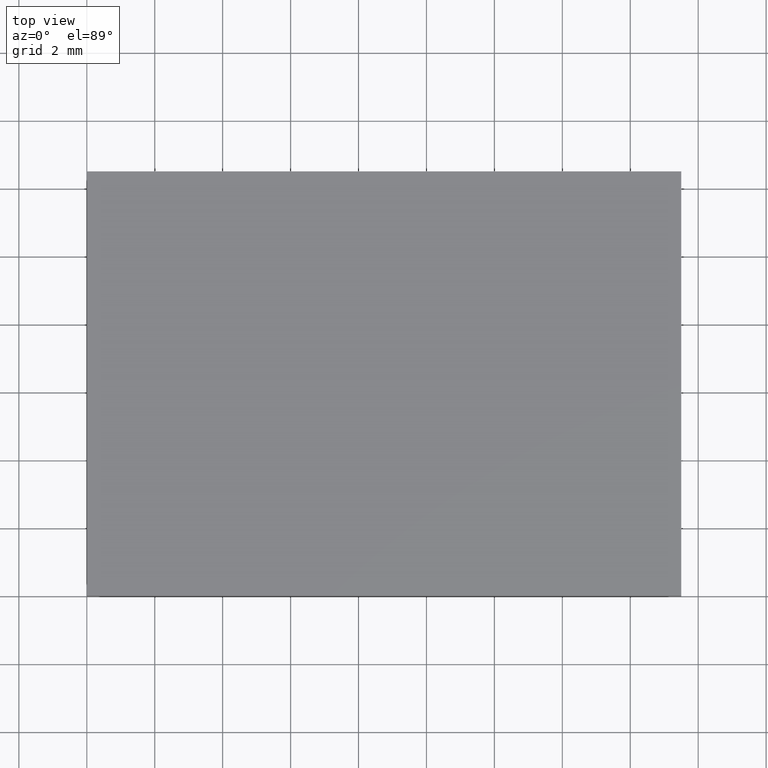
[diagram: clean part render]
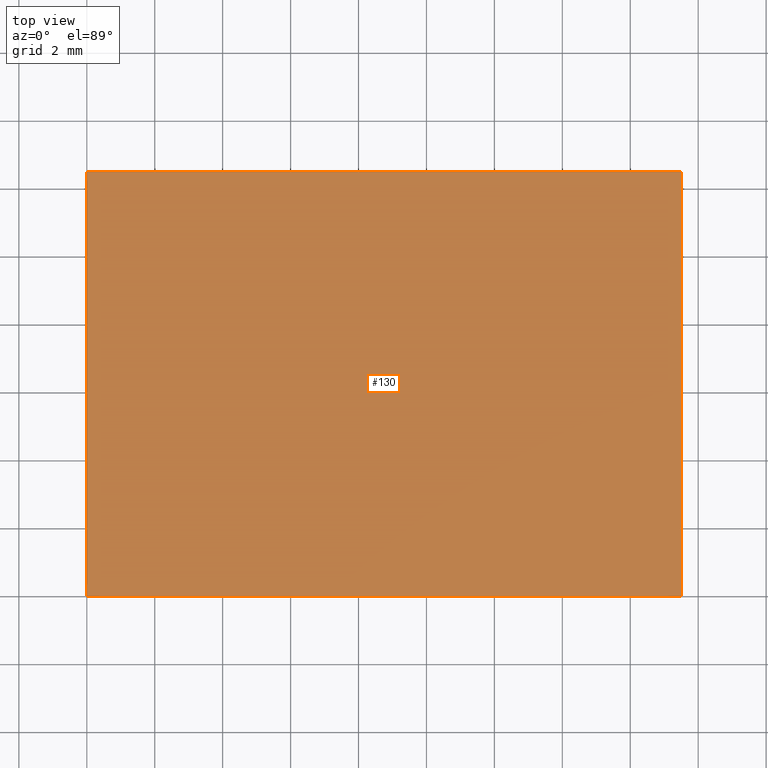
[diagram: same view with one face highlighted and labeled with its STEP entity id]
A machine part, top view. The second image highlights one B-rep face of the part: STEP entity #130.
In plain terms, the highlighted planar face has unit normal (0, 0, -1).
Its self-contained STEP definition (entity closure, byte-faithful):
#3 = VERTEX_POINT ( 'NONE', #122 ) ;
#4 = FACE_OUTER_BOUND ( 'NONE', #21, .T. ) ;
#7 = LINE ( 'NONE', #104, #28 ) ;
#10 = ORIENTED_EDGE ( 'NONE', *, *, #14, .T. ) ;
#14 = EDGE_CURVE ( 'NONE', #77, #133, #7, .T. ) ;
#16 = VECTOR ( 'NONE', #139, 1000.000000000000000 ) ;
#20 = DIRECTION ( 'NONE',  ( 0.000000000000000000, 0.000000000000000000, -1.000000000000000000 ) ) ;
#21 = EDGE_LOOP ( 'NONE', ( #10, #39, #117, #161 ) ) ;
#23 = DIRECTION ( 'NONE',  ( -1.000000000000000000, 0.000000000000000000, -0.000000000000000000 ) ) ;
#26 = EDGE_CURVE ( 'NONE', #133, #3, #82, .T. ) ;
#28 = VECTOR ( 'NONE', #136, 1000.000000000000000 ) ;
#29 = VECTOR ( 'NONE', #132, 1000.000000000000000 ) ;
#38 = PLANE ( 'NONE',  #168 ) ;
#39 = ORIENTED_EDGE ( 'NONE', *, *, #26, .T. ) ;
#71 = CARTESIAN_POINT ( 'NONE',  ( 0.000000000000000000, 0.000000000000000000, 1.100000000000000089 ) ) ;
#77 = VERTEX_POINT ( 'NONE', #112 ) ;
#78 = LINE ( 'NONE', #169, #16 ) ;
#82 = LINE ( 'NONE', #165, #152 ) ;
#102 = LINE ( 'NONE', #177, #29 ) ;
#104 = CARTESIAN_POINT ( 'NONE',  ( 0.000000000000000000, 0.000000000000000000, 1.100000000000000089 ) ) ;
#106 = EDGE_CURVE ( 'NONE', #142, #77, #78, .T. ) ;
#112 = CARTESIAN_POINT ( 'NONE',  ( 0.000000000000000000, 12.50000000000000000, 1.100000000000000089 ) ) ;
#117 = ORIENTED_EDGE ( 'NONE', *, *, #129, .T. ) ;
#122 = CARTESIAN_POINT ( 'NONE',  ( 17.50000000000000000, 0.000000000000000000, 1.100000000000000089 ) ) ;
#129 = EDGE_CURVE ( 'NONE', #3, #142, #102, .T. ) ;
#130 = ADVANCED_FACE ( 'NONE', ( #4 ), #38, .F. ) ;
#132 = DIRECTION ( 'NONE',  ( 0.000000000000000000, 1.000000000000000000, 0.000000000000000000 ) ) ;
#133 = VERTEX_POINT ( 'NONE', #71 ) ;
#136 = DIRECTION ( 'NONE',  ( -0.000000000000000000, -1.000000000000000000, -0.000000000000000000 ) ) ;
#139 = DIRECTION ( 'NONE',  ( -1.000000000000000000, -0.000000000000000000, -0.000000000000000000 ) ) ;
#142 = VERTEX_POINT ( 'NONE', #163 ) ;
#152 = VECTOR ( 'NONE', #162, 1000.000000000000000 ) ;
#159 = CARTESIAN_POINT ( 'NONE',  ( 0.000000000000000000, 0.000000000000000000, 1.100000000000000089 ) ) ;
#161 = ORIENTED_EDGE ( 'NONE', *, *, #106, .T. ) ;
#162 = DIRECTION ( 'NONE',  ( 1.000000000000000000, 0.000000000000000000, 0.000000000000000000 ) ) ;
#163 = CARTESIAN_POINT ( 'NONE',  ( 17.50000000000000000, 12.50000000000000000, 1.100000000000000089 ) ) ;
#165 = CARTESIAN_POINT ( 'NONE',  ( 0.000000000000000000, 0.000000000000000000, 1.100000000000000089 ) ) ;
#168 = AXIS2_PLACEMENT_3D ( 'NONE', #159, #20, #23 ) ;
#169 = CARTESIAN_POINT ( 'NONE',  ( 0.000000000000000000, 12.50000000000000000, 1.100000000000000089 ) ) ;
#177 = CARTESIAN_POINT ( 'NONE',  ( 17.50000000000000000, 0.000000000000000000, 1.100000000000000089 ) ) ;